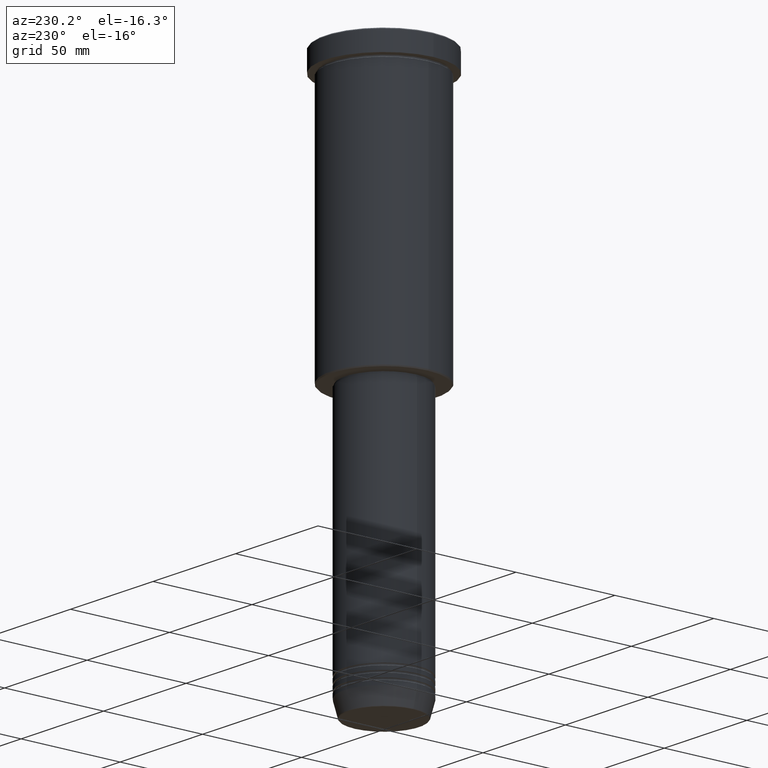
[diagram: clean part render]
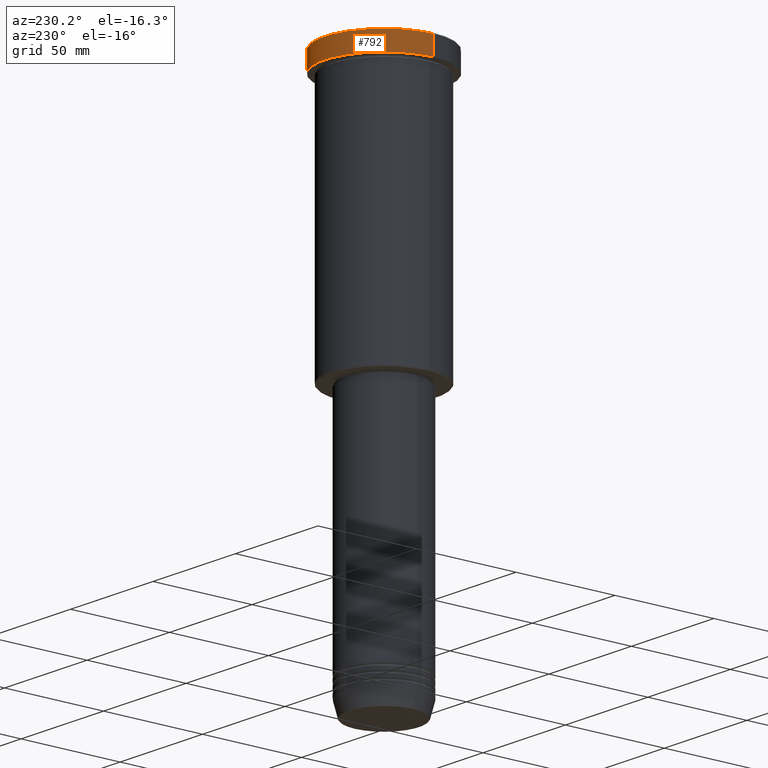
[diagram: same view with one face highlighted and labeled with its STEP entity id]
A machine part, auxiliary view. The second image highlights one B-rep face of the part: STEP entity #792.
In plain terms, the highlighted cylindrical surface (partial cylindrical patch) has radius 30 mm, axis along (-0, -0, 1).
Its self-contained STEP definition (entity closure, byte-faithful):
#45 = VERTEX_POINT ( 'NONE', #314 ) ;
#57 = DIRECTION ( 'NONE',  ( 1.000000000000000000, 0.000000000000000000, 0.000000000000000000 ) ) ;
#109 = DIRECTION ( 'NONE',  ( 1.000000000000000000, 0.000000000000000000, 0.000000000000000000 ) ) ;
#127 = DIRECTION ( 'NONE',  ( -0.000000000000000000, -0.000000000000000000, 1.000000000000000000 ) ) ;
#128 = EDGE_LOOP ( 'NONE', ( #666, #179, #219, #623 ) ) ;
#179 = ORIENTED_EDGE ( 'NONE', *, *, #1024, .T. ) ;
#191 = CARTESIAN_POINT ( 'NONE',  ( 0.000000000000000000, 0.000000000000000000, -0.4999999999999796274 ) ) ;
#203 = CARTESIAN_POINT ( 'NONE',  ( 30.00000000000000000, 0.000000000000000000, 0.000000000000000000 ) ) ;
#219 = ORIENTED_EDGE ( 'NONE', *, *, #487, .T. ) ;
#251 = CARTESIAN_POINT ( 'NONE',  ( 0.000000000000000000, 0.000000000000000000, -9.999999999999992895 ) ) ;
#264 = CIRCLE ( 'NONE', #647, 30.00000000000000000 ) ;
#314 = CARTESIAN_POINT ( 'NONE',  ( 30.00000000000000000, 0.000000000000000000, -9.999999999999992895 ) ) ;
#325 = VERTEX_POINT ( 'NONE', #665 ) ;
#487 = EDGE_CURVE ( 'NONE', #325, #775, #264, .T. ) ;
#520 = VERTEX_POINT ( 'NONE', #992 ) ;
#531 = VECTOR ( 'NONE', #586, 1000.000000000000000 ) ;
#554 = DIRECTION ( 'NONE',  ( 0.000000000000000000, 0.000000000000000000, -1.000000000000000000 ) ) ;
#580 = EDGE_CURVE ( 'NONE', #45, #520, #591, .T. ) ;
#586 = DIRECTION ( 'NONE',  ( -0.000000000000000000, -0.000000000000000000, 1.000000000000000000 ) ) ;
#589 = CARTESIAN_POINT ( 'NONE',  ( 0.000000000000000000, 0.000000000000000000, 0.000000000000000000 ) ) ;
#591 = CIRCLE ( 'NONE', #961, 30.00000000000000000 ) ;
#623 = ORIENTED_EDGE ( 'NONE', *, *, #1148, .F. ) ;
#647 = AXIS2_PLACEMENT_3D ( 'NONE', #191, #554, #109 ) ;
#665 = CARTESIAN_POINT ( 'NONE',  ( -30.00000000000000000, 3.673940397442059178E-15, -0.4999999999999796274 ) ) ;
#666 = ORIENTED_EDGE ( 'NONE', *, *, #580, .T. ) ;
#678 = DIRECTION ( 'NONE',  ( -0.000000000000000000, -0.000000000000000000, 1.000000000000000000 ) ) ;
#716 = DIRECTION ( 'NONE',  ( 1.000000000000000000, 0.000000000000000000, 0.000000000000000000 ) ) ;
#775 = VERTEX_POINT ( 'NONE', #948 ) ;
#792 = ADVANCED_FACE ( 'NONE', ( #952 ), #875, .T. ) ;
#806 = VECTOR ( 'NONE', #678, 1000.000000000000000 ) ;
#856 = CARTESIAN_POINT ( 'NONE',  ( -30.00000000000000000, 3.673940397442059178E-15, 0.000000000000000000 ) ) ;
#868 = LINE ( 'NONE', #856, #531 ) ;
#875 = CYLINDRICAL_SURFACE ( 'NONE', #919, 30.00000000000000000 ) ;
#884 = DIRECTION ( 'NONE',  ( -0.000000000000000000, -0.000000000000000000, 1.000000000000000000 ) ) ;
#919 = AXIS2_PLACEMENT_3D ( 'NONE', #589, #127, #57 ) ;
#948 = CARTESIAN_POINT ( 'NONE',  ( 30.00000000000000000, 0.000000000000000000, -0.4999999999999796274 ) ) ;
#952 = FACE_OUTER_BOUND ( 'NONE', #128, .T. ) ;
#961 = AXIS2_PLACEMENT_3D ( 'NONE', #251, #884, #716 ) ;
#992 = CARTESIAN_POINT ( 'NONE',  ( -30.00000000000000000, 3.673940397442059178E-15, -9.999999999999992895 ) ) ;
#1023 = LINE ( 'NONE', #203, #806 ) ;
#1024 = EDGE_CURVE ( 'NONE', #520, #325, #868, .T. ) ;
#1148 = EDGE_CURVE ( 'NONE', #45, #775, #1023, .T. ) ;